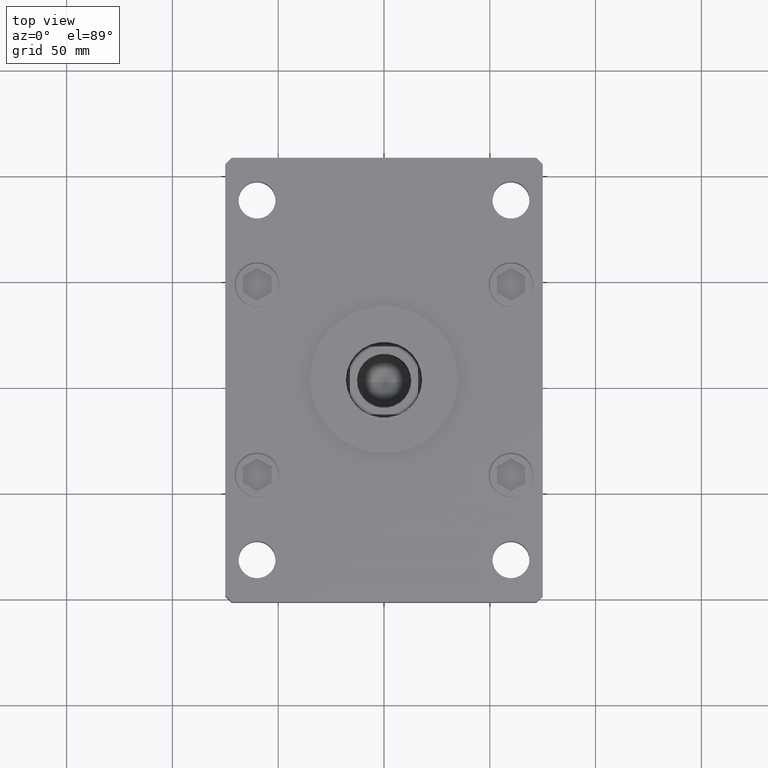
[diagram: clean part render]
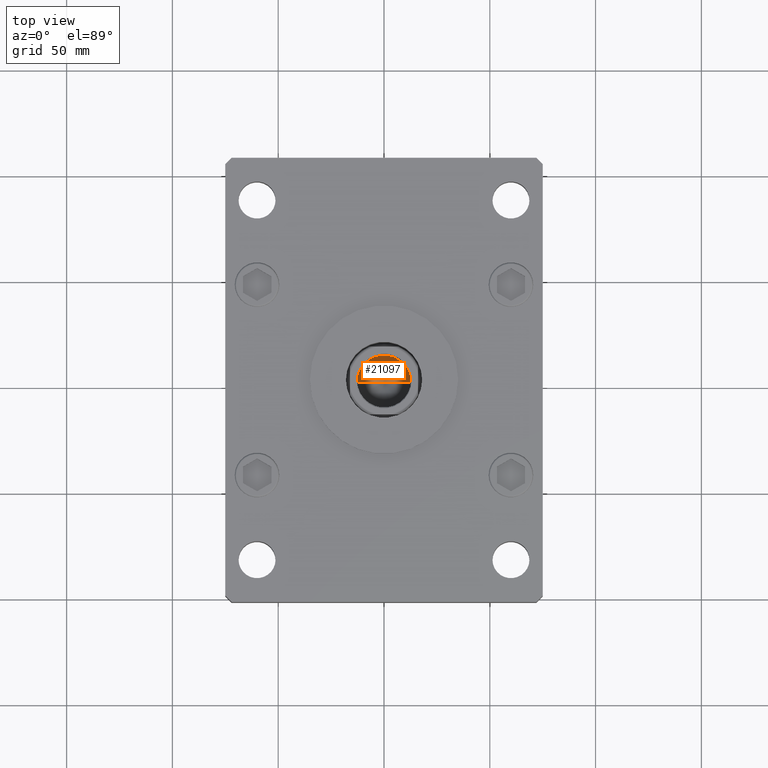
[diagram: same view with one face highlighted and labeled with its STEP entity id]
A machine part, top view. The second image highlights one B-rep face of the part: STEP entity #21097.
In plain terms, the highlighted conical surface has half-angle 59 deg.
Its self-contained STEP definition (entity closure, byte-faithful):
#926 = CARTESIAN_POINT ( 'NONE',  ( 12.74999999999999112, 0.000000000000000000, 128.0000000000000000 ) ) ;
#2228 = DIRECTION ( 'NONE',  ( 1.000000000000000000, 0.000000000000000000, 0.000000000000000000 ) ) ;
#3119 = CARTESIAN_POINT ( 'NONE',  ( -12.74999999999999112, 1.561424668912874125E-15, 128.0000000000000000 ) ) ;
#5820 = ORIENTED_EDGE ( 'NONE', *, *, #47215, .F. ) ;
#6170 = CONICAL_SURFACE ( 'NONE', #42462, 12.74999999999999112, 1.029744258676654312 ) ;
#6612 = AXIS2_PLACEMENT_3D ( 'NONE', #17114, #33649, #50473 ) ;
#7031 = CARTESIAN_POINT ( 'NONE',  ( -1.307202896762960287E-14, 0.000000000000000000, 120.3390271073986213 ) ) ;
#7940 = CARTESIAN_POINT ( 'NONE',  ( -12.74999999999999112, 1.561424668912874125E-15, 128.0000000000000000 ) ) ;
#13891 = DIRECTION ( 'NONE',  ( 0.8571673007021122226, 0.000000000000000000, 0.5150380749100542666 ) ) ;
#17114 = CARTESIAN_POINT ( 'NONE',  ( 0.000000000000000000, 0.000000000000000000, 128.0000000000000000 ) ) ;
#17947 = LINE ( 'NONE', #926, #27611 ) ;
#18186 = FACE_OUTER_BOUND ( 'NONE', #24660, .T. ) ;
#21097 = ADVANCED_FACE ( 'NONE', ( #18186 ), #6170, .F. ) ;
#23189 = VERTEX_POINT ( 'NONE', #3119 ) ;
#24660 = EDGE_LOOP ( 'NONE', ( #5820, #50417, #47373 ) ) ;
#24693 = LINE ( 'NONE', #7940, #39614 ) ;
#27611 = VECTOR ( 'NONE', #13891, 1000.000000000000000 ) ;
#29580 = DIRECTION ( 'NONE',  ( -0.8571673007021122226, 1.049727191138618572E-16, 0.5150380749100542666 ) ) ;
#30437 = VERTEX_POINT ( 'NONE', #37126 ) ;
#33649 = DIRECTION ( 'NONE',  ( -0.000000000000000000, -0.000000000000000000, 1.000000000000000000 ) ) ;
#35780 = DIRECTION ( 'NONE',  ( -0.000000000000000000, -0.000000000000000000, 1.000000000000000000 ) ) ;
#36837 = EDGE_CURVE ( 'NONE', #30437, #23189, #42061, .T. ) ;
#37126 = CARTESIAN_POINT ( 'NONE',  ( 12.74999999999999112, 0.000000000000000000, 128.0000000000000000 ) ) ;
#39317 = CARTESIAN_POINT ( 'NONE',  ( 0.000000000000000000, 0.000000000000000000, 128.0000000000000000 ) ) ;
#39614 = VECTOR ( 'NONE', #29580, 1000.000000000000000 ) ;
#42061 = CIRCLE ( 'NONE', #6612, 12.74999999999999112 ) ;
#42462 = AXIS2_PLACEMENT_3D ( 'NONE', #39317, #35780, #2228 ) ;
#42621 = VERTEX_POINT ( 'NONE', #7031 ) ;
#47215 = EDGE_CURVE ( 'NONE', #42621, #23189, #24693, .T. ) ;
#47373 = ORIENTED_EDGE ( 'NONE', *, *, #36837, .T. ) ;
#50417 = ORIENTED_EDGE ( 'NONE', *, *, #51182, .T. ) ;
#50473 = DIRECTION ( 'NONE',  ( 1.000000000000000000, 0.000000000000000000, 0.000000000000000000 ) ) ;
#51182 = EDGE_CURVE ( 'NONE', #42621, #30437, #17947, .T. ) ;